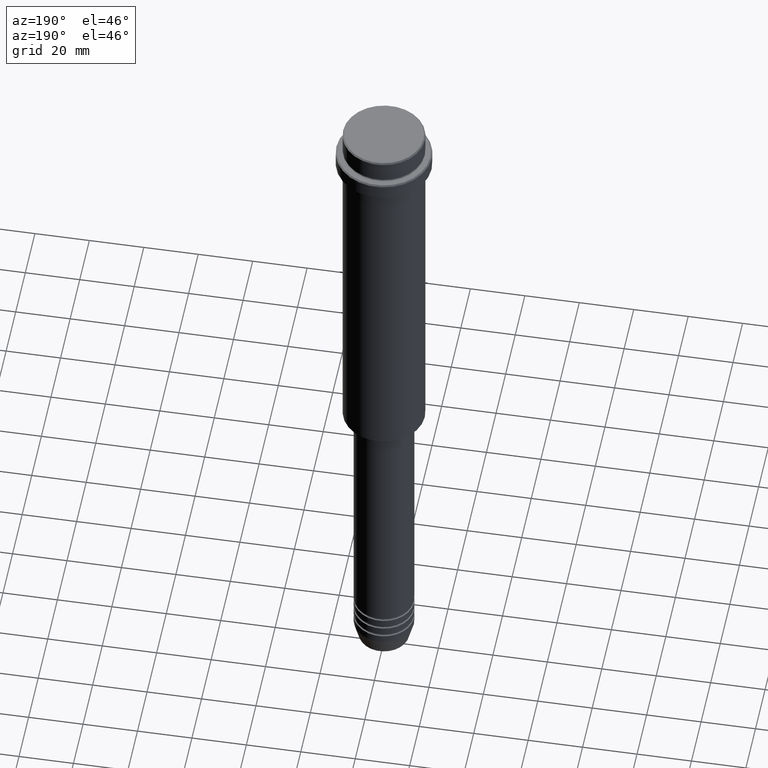
[diagram: clean part render]
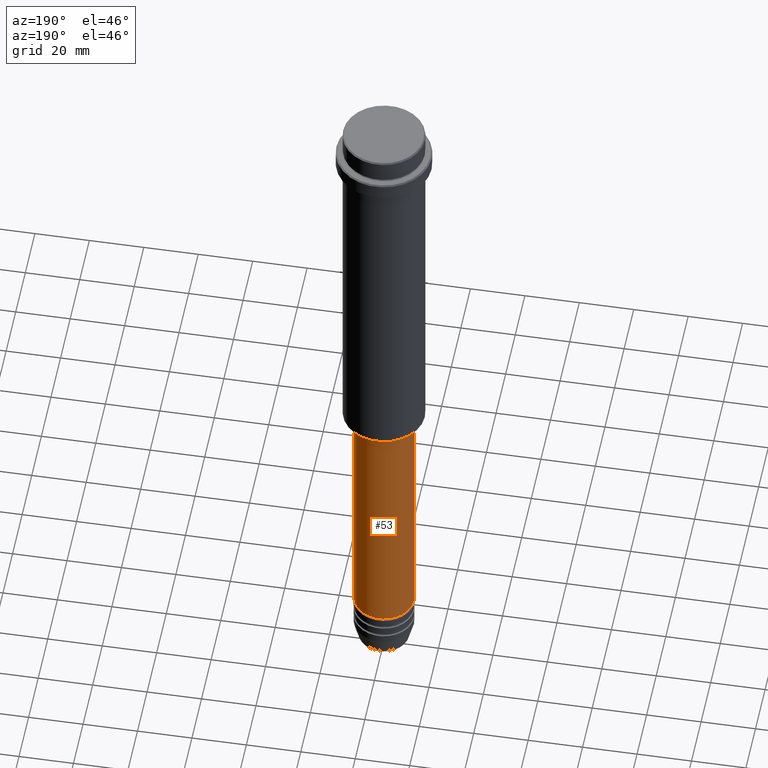
[diagram: same view with one face highlighted and labeled with its STEP entity id]
A machine part, auxiliary view. The second image highlights one B-rep face of the part: STEP entity #53.
In plain terms, the highlighted cylindrical surface (edge-blend (fillet) strip) has radius 11 mm, axis along (-0, -0, 1).
Its self-contained STEP definition (entity closure, byte-faithful):
#21 = EDGE_CURVE ( 'NONE', #452, #500, #174, .T. ) ;
#27 = CARTESIAN_POINT ( 'NONE',  ( 11.00000000000000000, 0.000000000000000000, 0.000000000000000000 ) ) ;
#34 = EDGE_CURVE ( 'NONE', #1269, #452, #574, .T. ) ;
#53 = ADVANCED_FACE ( 'NONE', ( #225 ), #663, .T. ) ;
#96 = DIRECTION ( 'NONE',  ( -0.000000000000000000, -0.000000000000000000, 1.000000000000000000 ) ) ;
#144 = ORIENTED_EDGE ( 'NONE', *, *, #1196, .F. ) ;
#161 = AXIS2_PLACEMENT_3D ( 'NONE', #865, #1301, #338 ) ;
#174 = LINE ( 'NONE', #640, #1182 ) ;
#225 = FACE_OUTER_BOUND ( 'NONE', #462, .T. ) ;
#270 = DIRECTION ( 'NONE',  ( -0.000000000000000000, -0.000000000000000000, 1.000000000000000000 ) ) ;
#289 = VERTEX_POINT ( 'NONE', #454 ) ;
#299 = CARTESIAN_POINT ( 'NONE',  ( -10.99999999999999822, 1.347111479062088207E-15, -146.0000000000000284 ) ) ;
#338 = DIRECTION ( 'NONE',  ( 1.000000000000000000, 0.000000000000000000, 0.000000000000000000 ) ) ;
#378 = DIRECTION ( 'NONE',  ( 1.000000000000000000, 0.000000000000000000, 0.000000000000000000 ) ) ;
#411 = ORIENTED_EDGE ( 'NONE', *, *, #21, .T. ) ;
#452 = VERTEX_POINT ( 'NONE', #1364 ) ;
#454 = CARTESIAN_POINT ( 'NONE',  ( 10.99999999999999822, 0.000000000000000000, -146.0000000000000284 ) ) ;
#461 = DIRECTION ( 'NONE',  ( -0.000000000000000000, -0.000000000000000000, 1.000000000000000000 ) ) ;
#462 = EDGE_LOOP ( 'NONE', ( #685, #411, #144, #509 ) ) ;
#467 = CARTESIAN_POINT ( 'NONE',  ( 11.00000000000000000, 0.000000000000000000, -240.9999999999999147 ) ) ;
#500 = VERTEX_POINT ( 'NONE', #299 ) ;
#509 = ORIENTED_EDGE ( 'NONE', *, *, #1170, .F. ) ;
#536 = AXIS2_PLACEMENT_3D ( 'NONE', #1336, #270, #378 ) ;
#574 = CIRCLE ( 'NONE', #1058, 11.00000000000000000 ) ;
#640 = CARTESIAN_POINT ( 'NONE',  ( -11.00000000000000000, 1.347111479062088405E-15, 0.000000000000000000 ) ) ;
#650 = VECTOR ( 'NONE', #461, 1000.000000000000000 ) ;
#663 = CYLINDRICAL_SURFACE ( 'NONE', #161, 11.00000000000000000 ) ;
#685 = ORIENTED_EDGE ( 'NONE', *, *, #34, .T. ) ;
#865 = CARTESIAN_POINT ( 'NONE',  ( 0.000000000000000000, 0.000000000000000000, 0.000000000000000000 ) ) ;
#867 = CIRCLE ( 'NONE', #536, 10.99999999999999822 ) ;
#1058 = AXIS2_PLACEMENT_3D ( 'NONE', #1146, #1406, #1311 ) ;
#1101 = LINE ( 'NONE', #27, #650 ) ;
#1146 = CARTESIAN_POINT ( 'NONE',  ( 0.000000000000000000, 0.000000000000000000, -240.9999999999999147 ) ) ;
#1170 = EDGE_CURVE ( 'NONE', #1269, #289, #1101, .T. ) ;
#1182 = VECTOR ( 'NONE', #96, 1000.000000000000000 ) ;
#1196 = EDGE_CURVE ( 'NONE', #289, #500, #867, .T. ) ;
#1269 = VERTEX_POINT ( 'NONE', #467 ) ;
#1301 = DIRECTION ( 'NONE',  ( -0.000000000000000000, -0.000000000000000000, 1.000000000000000000 ) ) ;
#1311 = DIRECTION ( 'NONE',  ( 1.000000000000000000, 0.000000000000000000, 0.000000000000000000 ) ) ;
#1336 = CARTESIAN_POINT ( 'NONE',  ( 0.000000000000000000, 0.000000000000000000, -146.0000000000000284 ) ) ;
#1364 = CARTESIAN_POINT ( 'NONE',  ( -11.00000000000000000, 1.347111479062088405E-15, -240.9999999999999147 ) ) ;
#1406 = DIRECTION ( 'NONE',  ( -0.000000000000000000, -0.000000000000000000, 1.000000000000000000 ) ) ;